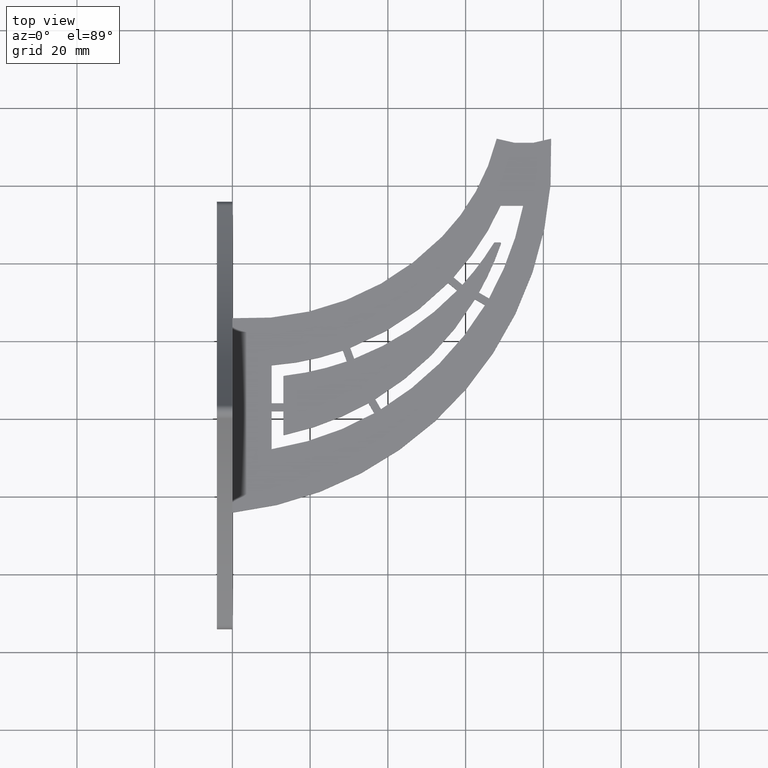
[diagram: clean part render]
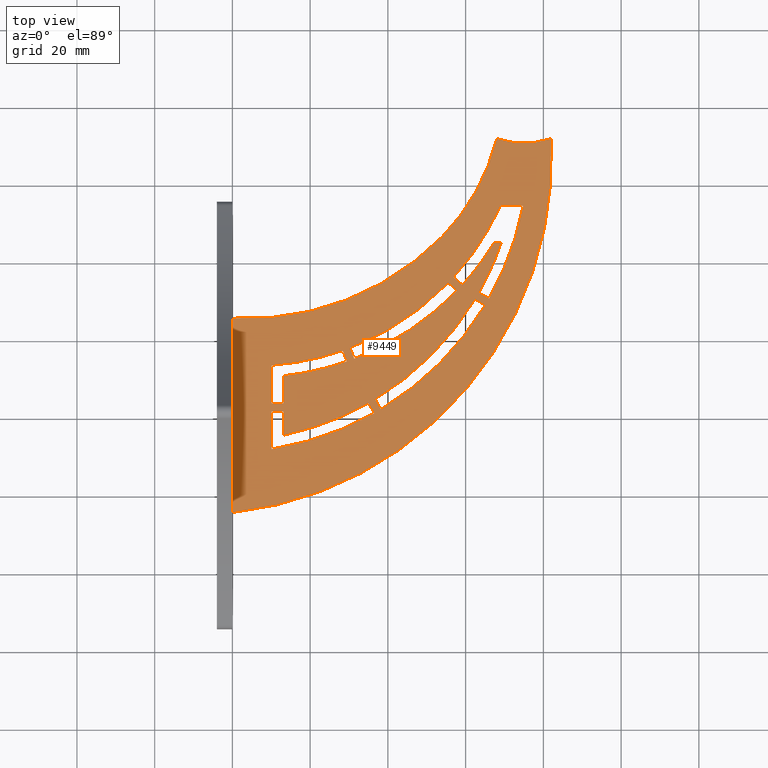
[diagram: same view with one face highlighted and labeled with its STEP entity id]
A machine part, top view. The second image highlights one B-rep face of the part: STEP entity #9449.
In plain terms, the highlighted planar face has unit normal (-0, 0, 1).
Its self-contained STEP definition (entity closure, byte-faithful):
#4 = LINE ( 'NONE', #7925, #8430 ) ;
#17 = CARTESIAN_POINT ( 'NONE',  ( 68.00000000000000000, 71.18900302333739205, 2.000000000000000000 ) ) ;
#40 = VERTEX_POINT ( 'NONE', #9659 ) ;
#41 = FACE_OUTER_BOUND ( 'NONE', #11271, .T. ) ;
#45 = CARTESIAN_POINT ( 'NONE',  ( 65.00000000000001421, 28.36591682216534593, 2.000000000000000000 ) ) ;
#111 = VERTEX_POINT ( 'NONE', #10637 ) ;
#247 = ORIENTED_EDGE ( 'NONE', *, *, #1890, .T. ) ;
#321 = LINE ( 'NONE', #13197, #6594 ) ;
#328 = CIRCLE ( 'NONE', #10571, 78.49999999999998579 ) ;
#348 = EDGE_CURVE ( 'NONE', #1524, #12190, #9825, .T. ) ;
#351 = VERTEX_POINT ( 'NONE', #2299 ) ;
#353 = EDGE_CURVE ( 'NONE', #2132, #4760, #9336, .T. ) ;
#371 = VERTEX_POINT ( 'NONE', #3362 ) ;
#497 = VERTEX_POINT ( 'NONE', #1846 ) ;
#500 = LINE ( 'NONE', #6691, #7941 ) ;
#572 = CARTESIAN_POINT ( 'NONE',  ( 13.40190804038342876, -5.036072685718692377, 2.000000000000000000 ) ) ;
#589 = ORIENTED_EDGE ( 'NONE', *, *, #9886, .F. ) ;
#656 = EDGE_CURVE ( 'NONE', #111, #6487, #2065, .T. ) ;
#666 = VERTEX_POINT ( 'NONE', #12627 ) ;
#673 = CARTESIAN_POINT ( 'NONE',  ( 13.09999999999989306, -4.356155149773243477E-13, 2.000000000000000000 ) ) ;
#699 = ORIENTED_EDGE ( 'NONE', *, *, #7045, .T. ) ;
#707 = CARTESIAN_POINT ( 'NONE',  ( 10.09999999999999964, 0.000000000000000000, 2.000000000000000000 ) ) ;
#720 = CARTESIAN_POINT ( 'NONE',  ( 13.10000000000022169, -4.791520942025062624, 2.000000000000000000 ) ) ;
#800 = VERTEX_POINT ( 'NONE', #45 ) ;
#817 = CARTESIAN_POINT ( 'NONE',  ( 2.302567471051777078E-13, 44.50000000000035527, 2.000000000000000000 ) ) ;
#889 = AXIS2_PLACEMENT_3D ( 'NONE', #4376, #7702, #2436 ) ;
#955 = VERTEX_POINT ( 'NONE', #9761 ) ;
#1044 = ORIENTED_EDGE ( 'NONE', *, *, #12098, .F. ) ;
#1077 = ORIENTED_EDGE ( 'NONE', *, *, #10941, .F. ) ;
#1124 = DIRECTION ( 'NONE',  ( 1.000000000000000000, 0.000000000000000000, 0.000000000000000000 ) ) ;
#1125 = DIRECTION ( 'NONE',  ( 1.000000000000000000, 0.000000000000000000, 0.000000000000000000 ) ) ;
#1147 = VECTOR ( 'NONE', #8075, 1000.000000000000114 ) ;
#1169 = CARTESIAN_POINT ( 'NONE',  ( 0.000000000000000000, 1.100000000000000311, 2.000000000000000000 ) ) ;
#1189 = CARTESIAN_POINT ( 'NONE',  ( 0.000000000000000000, 0.000000000000000000, 2.000000000000000000 ) ) ;
#1201 = CARTESIAN_POINT ( 'NONE',  ( 13.32211758407314939, 10.18235425494592938, 2.000000000000000000 ) ) ;
#1257 = EDGE_CURVE ( 'NONE', #3153, #11437, #2705, .T. ) ;
#1297 = CIRCLE ( 'NONE', #12227, 0.2500000000000296985 ) ;
#1348 = CARTESIAN_POINT ( 'NONE',  ( 62.40149663089107435, 29.86616344181055283, 2.000000000000000000 ) ) ;
#1383 = DIRECTION ( 'NONE',  ( 1.000000000000000000, 0.000000000000000000, 0.000000000000000000 ) ) ;
#1387 = DIRECTION ( 'NONE',  ( 0.3453912201917184177, -0.9384587923902019124, 0.000000000000000000 ) ) ;
#1395 = CARTESIAN_POINT ( 'NONE',  ( 69.01433309437241803, 54.00000000000000711, 2.000000000000000000 ) ) ;
#1399 = CARTESIAN_POINT ( 'NONE',  ( 14.61404249810564338, 84.41547426875771976, 2.000000000000000000 ) ) ;
#1402 = LINE ( 'NONE', #11941, #8343 ) ;
#1502 = EDGE_LOOP ( 'NONE', ( #11727, #12349, #11404, #3925, #6650, #6939, #589 ) ) ;
#1520 = CIRCLE ( 'NONE', #10819, 78.50000000000000000 ) ;
#1524 = VERTEX_POINT ( 'NONE', #11119 ) ;
#1593 = DIRECTION ( 'NONE',  ( 1.000000000000000000, 0.000000000000000000, 0.000000000000000000 ) ) ;
#1611 = VERTEX_POINT ( 'NONE', #5435 ) ;
#1630 = AXIS2_PLACEMENT_3D ( 'NONE', #6412, #7470, #7509 ) ;
#1648 = LINE ( 'NONE', #13404, #8433 ) ;
#1659 = EDGE_CURVE ( 'NONE', #11688, #9168, #7825, .T. ) ;
#1730 = EDGE_CURVE ( 'NONE', #11929, #2005, #8172, .T. ) ;
#1740 = DIRECTION ( 'NONE',  ( 0.3453912201918108438, -0.9384587923901678286, 0.000000000000000000 ) ) ;
#1846 = CARTESIAN_POINT ( 'NONE',  ( 13.10000000000022169, 9.933913978657852084, 2.000000000000000000 ) ) ;
#1890 = EDGE_CURVE ( 'NONE', #40, #3771, #10462, .T. ) ;
#1957 = VERTEX_POINT ( 'NONE', #11498 ) ;
#2005 = VERTEX_POINT ( 'NONE', #4889 ) ;
#2020 = FACE_BOUND ( 'NONE', #1502, .T. ) ;
#2065 = CIRCLE ( 'NONE', #5401, 0.2500000000000279776 ) ;
#2101 = EDGE_CURVE ( 'NONE', #9575, #6487, #4680, .T. ) ;
#2132 = VERTEX_POINT ( 'NONE', #9815 ) ;
#2168 = VERTEX_POINT ( 'NONE', #2329 ) ;
#2207 = EDGE_LOOP ( 'NONE', ( #12659, #9458, #12052, #4591, #9118, #10477, #8264, #8201, #1044, #9768 ) ) ;
#2243 = CARTESIAN_POINT ( 'NONE',  ( 29.45318661070406918, 13.88045996790233794, 2.000000000000000000 ) ) ;
#2299 = CARTESIAN_POINT ( 'NONE',  ( 63.41057880476433439, 31.59297065384887659, 2.000000000000000000 ) ) ;
#2329 = CARTESIAN_POINT ( 'NONE',  ( 31.33010419547926872, 14.57124240828424711, 2.000000000000000000 ) ) ;
#2359 = ORIENTED_EDGE ( 'NONE', *, *, #6260, .T. ) ;
#2403 = DIRECTION ( 'NONE',  ( 0.8660254037844365982, -0.5000000000000036637, 0.000000000000000000 ) ) ;
#2426 = VECTOR ( 'NONE', #11332, 1000.000000000000000 ) ;
#2436 = DIRECTION ( 'NONE',  ( 1.000000000000000000, 0.000000000000000000, 0.000000000000000000 ) ) ;
#2468 = ORIENTED_EDGE ( 'NONE', *, *, #12152, .T. ) ;
#2489 = LINE ( 'NONE', #707, #13049 ) ;
#2496 = VECTOR ( 'NONE', #4426, 1000.000000000000000 ) ;
#2505 = EDGE_CURVE ( 'NONE', #4797, #11929, #6844, .T. ) ;
#2579 = DIRECTION ( 'NONE',  ( -0.000000000000000000, 0.000000000000000000, 1.000000000000000000 ) ) ;
#2664 = DIRECTION ( 'NONE',  ( 1.000000000000000000, 0.000000000000000000, 0.000000000000000000 ) ) ;
#2671 = FACE_BOUND ( 'NONE', #5514, .T. ) ;
#2705 = LINE ( 'NONE', #9420, #10476 ) ;
#2781 = AXIS2_PLACEMENT_3D ( 'NONE', #5865, #4084, #8262 ) ;
#2832 = DIRECTION ( 'NONE',  ( 3.325309274636090619E-14, 1.000000000000000000, 0.000000000000000000 ) ) ;
#2839 = AXIS2_PLACEMENT_3D ( 'NONE', #12296, #9157, #1593 ) ;
#3153 = VERTEX_POINT ( 'NONE', #4987 ) ;
#3183 = CARTESIAN_POINT ( 'NONE',  ( 66.00873501796485243, 30.09292446476082361, 2.000000000000000000 ) ) ;
#3282 = DIRECTION ( 'NONE',  ( 1.000000000000000000, 0.000000000000000000, 0.000000000000000000 ) ) ;
#3302 = VERTEX_POINT ( 'NONE', #2243 ) ;
#3332 = DIRECTION ( 'NONE',  ( 1.000000000000000000, 0.000000000000000000, 0.000000000000000000 ) ) ;
#3362 = CARTESIAN_POINT ( 'NONE',  ( -1.998139615876600116E-12, -24.99999999999961986, 2.000000000000000000 ) ) ;
#3375 = EDGE_CURVE ( 'NONE', #1524, #9575, #1402, .T. ) ;
#3423 = EDGE_LOOP ( 'NONE', ( #10111, #2359, #4023, #9372, #11819, #4804, #9794 ) ) ;
#3431 = CARTESIAN_POINT ( 'NONE',  ( 81.99999999999997158, 71.18900302333739205, 2.000000000000000000 ) ) ;
#3664 = ORIENTED_EDGE ( 'NONE', *, *, #6178, .T. ) ;
#3666 = EDGE_CURVE ( 'NONE', #666, #11688, #8760, .T. ) ;
#3696 = DIRECTION ( 'NONE',  ( -0.000000000000000000, 0.000000000000000000, 1.000000000000000000 ) ) ;
#3757 = DIRECTION ( 'NONE',  ( 1.000000000000000000, 0.000000000000000000, 0.000000000000000000 ) ) ;
#3771 = VERTEX_POINT ( 'NONE', #1348 ) ;
#3787 = LINE ( 'NONE', #11089, #1147 ) ;
#3819 = DIRECTION ( 'NONE',  ( -0.000000000000000000, 0.000000000000000000, 1.000000000000000000 ) ) ;
#3874 = DIRECTION ( 'NONE',  ( -0.000000000000000000, 0.000000000000000000, 1.000000000000000000 ) ) ;
#3925 = ORIENTED_EDGE ( 'NONE', *, *, #2505, .T. ) ;
#3968 = VECTOR ( 'NONE', #10054, 1000.000000000000114 ) ;
#3996 = CARTESIAN_POINT ( 'NONE',  ( 5.180452133363093736, 82.72691493104838401, 2.000000000000000000 ) ) ;
#4023 = ORIENTED_EDGE ( 'NONE', *, *, #4768, .F. ) ;
#4084 = DIRECTION ( 'NONE',  ( -0.000000000000000000, 0.000000000000000000, 1.000000000000000000 ) ) ;
#4093 = PLANE ( 'NONE',  #7382 ) ;
#4122 = CARTESIAN_POINT ( 'NONE',  ( 3.879352446742994065, 94.89242179660072907, 2.000000000000000000 ) ) ;
#4165 = CARTESIAN_POINT ( 'NONE',  ( 36.49999999999999289, 0.5631358385336567851, 2.000000000000000000 ) ) ;
#4272 = DIRECTION ( 'NONE',  ( 1.000000000000000000, 0.000000000000000000, 0.000000000000000000 ) ) ;
#4284 = EDGE_CURVE ( 'NONE', #11990, #2168, #500, .T. ) ;
#4376 = CARTESIAN_POINT ( 'NONE',  ( 68.85196653942389844, 44.24999999999997868, 2.000000000000000000 ) ) ;
#4400 = EDGE_LOOP ( 'NONE', ( #4824, #10396, #3664, #13440 ) ) ;
#4426 = DIRECTION ( 'NONE',  ( 3.552713678800588651E-14, 1.000000000000000000, 0.000000000000000000 ) ) ;
#4468 = EDGE_CURVE ( 'NONE', #351, #5079, #1648, .T. ) ;
#4475 = CIRCLE ( 'NONE', #9240, 69.99999999999998579 ) ;
#4489 = DIRECTION ( 'NONE',  ( 1.000000000000000000, 0.000000000000000000, 0.000000000000000000 ) ) ;
#4591 = ORIENTED_EDGE ( 'NONE', *, *, #656, .T. ) ;
#4680 = CIRCLE ( 'NONE', #6035, 73.00000000000001421 ) ;
#4752 = EDGE_CURVE ( 'NONE', #2168, #7187, #6758, .T. ) ;
#4760 = VERTEX_POINT ( 'NONE', #9120 ) ;
#4768 = EDGE_CURVE ( 'NONE', #11437, #497, #12042, .T. ) ;
#4771 = LINE ( 'NONE', #9898, #5772 ) ;
#4774 = EDGE_CURVE ( 'NONE', #5389, #3302, #321, .T. ) ;
#4797 = VERTEX_POINT ( 'NONE', #720 ) ;
#4804 = ORIENTED_EDGE ( 'NONE', *, *, #9972, .T. ) ;
#4824 = ORIENTED_EDGE ( 'NONE', *, *, #4752, .F. ) ;
#4889 = CARTESIAN_POINT ( 'NONE',  ( 34.99996197542167664, 3.161277910388546442, 2.000000000000000000 ) ) ;
#4899 = DIRECTION ( 'NONE',  ( 1.000000000000000000, 0.000000000000000000, 0.000000000000000000 ) ) ;
#4987 = CARTESIAN_POINT ( 'NONE',  ( 10.09999999999999964, 3.100000000000001865, 2.000000000000000000 ) ) ;
#5022 = DIRECTION ( 'NONE',  ( -3.739439842733181748E-14, 1.000000000000000000, 0.000000000000000000 ) ) ;
#5079 = VERTEX_POINT ( 'NONE', #3183 ) ;
#5136 = LINE ( 'NONE', #1169, #10416 ) ;
#5273 = DIRECTION ( 'NONE',  ( 1.000000000000000000, 1.445602896647341382E-16, 0.000000000000000000 ) ) ;
#5291 = CARTESIAN_POINT ( 'NONE',  ( 55.50000000000000000, 34.06539931041406533, 2.000000000000000000 ) ) ;
#5327 = FACE_BOUND ( 'NONE', #4400, .T. ) ;
#5348 = EDGE_CURVE ( 'NONE', #4797, #1957, #10063, .T. ) ;
#5389 = VERTEX_POINT ( 'NONE', #6044 ) ;
#5401 = AXIS2_PLACEMENT_3D ( 'NONE', #7503, #11620, #9579 ) ;
#5435 = CARTESIAN_POINT ( 'NONE',  ( 74.81433309437242940, 54.00000000000000711, 2.000000000000000000 ) ) ;
#5454 = VECTOR ( 'NONE', #2403, 1000.000000000000000 ) ;
#5514 = EDGE_LOOP ( 'NONE', ( #699, #247, #2468, #1077 ) ) ;
#5517 = CARTESIAN_POINT ( 'NONE',  ( -2.274320155918185815, 68.81855391245915143, 2.000000000000000000 ) ) ;
#5559 = CARTESIAN_POINT ( 'NONE',  ( -2.274320155918185815, 68.81855391245915143, 2.000000000000000000 ) ) ;
#5730 = DIRECTION ( 'NONE',  ( 1.000000000000000000, 0.000000000000000000, 0.000000000000000000 ) ) ;
#5744 = ORIENTED_EDGE ( 'NONE', *, *, #9657, .T. ) ;
#5772 = VECTOR ( 'NONE', #9807, 1000.000000000000000 ) ;
#5787 = DIRECTION ( 'NONE',  ( 1.000000000000000000, 0.000000000000000000, 0.000000000000000000 ) ) ;
#5807 = ORIENTED_EDGE ( 'NONE', *, *, #3666, .F. ) ;
#5809 = CARTESIAN_POINT ( 'NONE',  ( 13.35000000000025189, -4.791520942025062624, 2.000000000000000000 ) ) ;
#5865 = CARTESIAN_POINT ( 'NONE',  ( 5.180452133363093736, 82.72691493104838401, 2.000000000000000000 ) ) ;
#6021 = ORIENTED_EDGE ( 'NONE', *, *, #9252, .F. ) ;
#6035 = AXIS2_PLACEMENT_3D ( 'NONE', #3996, #6087, #4272 ) ;
#6039 = DIRECTION ( 'NONE',  ( 1.000000000000000000, 0.000000000000000000, 0.000000000000000000 ) ) ;
#6044 = CARTESIAN_POINT ( 'NONE',  ( 28.41691154838158795, 16.69611186267583491, 2.000000000000000000 ) ) ;
#6087 = DIRECTION ( 'NONE',  ( -0.000000000000000000, 0.000000000000000000, 1.000000000000000000 ) ) ;
#6115 = CIRCLE ( 'NONE', #2781, 72.99999999999998579 ) ;
#6154 = CARTESIAN_POINT ( 'NONE',  ( -2.274320155918185815, 68.81855391245915143, 2.000000000000000000 ) ) ;
#6178 = EDGE_CURVE ( 'NONE', #11990, #9881, #13649, .T. ) ;
#6260 = EDGE_CURVE ( 'NONE', #13224, #497, #1297, .T. ) ;
#6268 = VECTOR ( 'NONE', #2832, 1000.000000000000000 ) ;
#6333 = AXIS2_PLACEMENT_3D ( 'NONE', #5559, #8690, #9893 ) ;
#6349 = DIRECTION ( 'NONE',  ( -0.000000000000000000, 0.000000000000000000, 1.000000000000000000 ) ) ;
#6370 = CARTESIAN_POINT ( 'NONE',  ( 59.17939240146306901, 33.60345363278309350, 2.000000000000000000 ) ) ;
#6412 = CARTESIAN_POINT ( 'NONE',  ( -2.274320155918185815, 68.81855391245915143, 2.000000000000000000 ) ) ;
#6487 = VERTEX_POINT ( 'NONE', #10689 ) ;
#6594 = VECTOR ( 'NONE', #1740, 1000.000000000000114 ) ;
#6650 = ORIENTED_EDGE ( 'NONE', *, *, #1730, .T. ) ;
#6671 = DIRECTION ( 'NONE',  ( 0.7683469671252344257, -0.6400335445189211381, 0.000000000000000000 ) ) ;
#6691 = CARTESIAN_POINT ( 'NONE',  ( 32.31563232537948238, 11.89347446114490836, 2.000000000000000000 ) ) ;
#6706 = EDGE_CURVE ( 'NONE', #111, #4760, #7388, .T. ) ;
#6758 = CIRCLE ( 'NONE', #2839, 73.00000000000001421 ) ;
#6814 = CARTESIAN_POINT ( 'NONE',  ( 57.81112312110035845, 32.14023218370323320, 2.000000000000000000 ) ) ;
#6844 = CIRCLE ( 'NONE', #9383, 0.2500000000000366374 ) ;
#6939 = ORIENTED_EDGE ( 'NONE', *, *, #13048, .F. ) ;
#6970 = CARTESIAN_POINT ( 'NONE',  ( 10.09999999999999787, 12.90000000000000391, 2.000000000000000000 ) ) ;
#7045 = EDGE_CURVE ( 'NONE', #955, #40, #10203, .T. ) ;
#7076 = AXIS2_PLACEMENT_3D ( 'NONE', #1399, #13003, #3332 ) ;
#7112 = CARTESIAN_POINT ( 'NONE',  ( 10.09999999999999964, -8.700000000000001066, 2.000000000000000000 ) ) ;
#7187 = VERTEX_POINT ( 'NONE', #6814 ) ;
#7382 = AXIS2_PLACEMENT_3D ( 'NONE', #1189, #11713, #10518 ) ;
#7388 = LINE ( 'NONE', #817, #2426 ) ;
#7470 = DIRECTION ( 'NONE',  ( -0.000000000000000000, 0.000000000000000000, 1.000000000000000000 ) ) ;
#7503 = CARTESIAN_POINT ( 'NONE',  ( 67.51093839320922996, 44.24999999999997868, 2.000000000000000000 ) ) ;
#7509 = DIRECTION ( 'NONE',  ( 1.000000000000000000, 0.000000000000000000, 0.000000000000000000 ) ) ;
#7702 = DIRECTION ( 'NONE',  ( -0.000000000000000000, 0.000000000000000000, 1.000000000000000000 ) ) ;
#7786 = AXIS2_PLACEMENT_3D ( 'NONE', #7912, #10982, #9006 ) ;
#7825 = CIRCLE ( 'NONE', #7076, 55.00000000000000711 ) ;
#7853 = CARTESIAN_POINT ( 'NONE',  ( 5.180452133363093736, 82.72691493104838401, 2.000000000000000000 ) ) ;
#7912 = CARTESIAN_POINT ( 'NONE',  ( -2.274320155918185815, 68.81855391245915143, 2.000000000000000000 ) ) ;
#7925 = CARTESIAN_POINT ( 'NONE',  ( 0.000000000000000000, 54.00000000000000711, 2.000000000000000000 ) ) ;
#7941 = VECTOR ( 'NONE', #1387, 999.9999999999998863 ) ;
#8075 = DIRECTION ( 'NONE',  ( -0.5000000000000005551, 0.8660254037844382635, 0.000000000000000000 ) ) ;
#8145 = FACE_BOUND ( 'NONE', #3423, .T. ) ;
#8172 = CIRCLE ( 'NONE', #7786, 75.50000000277351830 ) ;
#8201 = ORIENTED_EDGE ( 'NONE', *, *, #13059, .T. ) ;
#8218 = CARTESIAN_POINT ( 'NONE',  ( 53.97457268643530881, 45.99999999999996447, 2.000000000000000000 ) ) ;
#8262 = DIRECTION ( 'NONE',  ( 1.000000000000000000, 0.000000000000000000, 0.000000000000000000 ) ) ;
#8264 = ORIENTED_EDGE ( 'NONE', *, *, #348, .T. ) ;
#8343 = VECTOR ( 'NONE', #6671, 1000.000000000000114 ) ;
#8430 = VECTOR ( 'NONE', #3757, 1000.000000000000000 ) ;
#8433 = VECTOR ( 'NONE', #11344, 1000.000000000000114 ) ;
#8635 = DIRECTION ( 'NONE',  ( -0.000000000000000000, 0.000000000000000000, 1.000000000000000000 ) ) ;
#8687 = CARTESIAN_POINT ( 'NONE',  ( 28.53280228481606784, 49.42026323961830059, 2.000000000000000000 ) ) ;
#8690 = DIRECTION ( 'NONE',  ( -0.000000000000000000, 0.000000000000000000, 1.000000000000000000 ) ) ;
#8760 = CIRCLE ( 'NONE', #12643, 69.99999999999997158 ) ;
#8818 = EDGE_CURVE ( 'NONE', #12435, #13223, #2489, .T. ) ;
#8854 = ORIENTED_EDGE ( 'NONE', *, *, #11438, .F. ) ;
#8945 = CARTESIAN_POINT ( 'NONE',  ( 10.09999999999999964, 1.100000000000000311, 2.000000000000000000 ) ) ;
#8991 = DIRECTION ( 'NONE',  ( 1.000000000000000000, 0.000000000000000000, 0.000000000000000000 ) ) ;
#9006 = DIRECTION ( 'NONE',  ( 1.000000000000000000, 0.000000000000000000, 0.000000000000000000 ) ) ;
#9079 = CARTESIAN_POINT ( 'NONE',  ( 13.10000000000004228, 4.898666193980483286E-13, 2.000000000000000000 ) ) ;
#9118 = ORIENTED_EDGE ( 'NONE', *, *, #2101, .F. ) ;
#9120 = CARTESIAN_POINT ( 'NONE',  ( 68.85196653942389844, 44.50000000000000000, 2.000000000000000000 ) ) ;
#9157 = DIRECTION ( 'NONE',  ( -0.000000000000000000, 0.000000000000000000, 1.000000000000000000 ) ) ;
#9168 = VERTEX_POINT ( 'NONE', #17 ) ;
#9235 = LINE ( 'NONE', #8687, #5454 ) ;
#9240 = AXIS2_PLACEMENT_3D ( 'NONE', #12103, #2579, #5787 ) ;
#9252 = EDGE_CURVE ( 'NONE', #371, #666, #13551, .T. ) ;
#9336 = CIRCLE ( 'NONE', #889, 0.2500000000000140998 ) ;
#9372 = ORIENTED_EDGE ( 'NONE', *, *, #1257, .F. ) ;
#9383 = AXIS2_PLACEMENT_3D ( 'NONE', #5809, #12126, #8991 ) ;
#9420 = CARTESIAN_POINT ( 'NONE',  ( -4.481368979606760207E-16, 3.100000000000000977, 2.000000000000000000 ) ) ;
#9448 = CIRCLE ( 'NONE', #10387, 91.99999999999938893 ) ;
#9449 = ADVANCED_FACE ( 'NONE', ( #2020, #41, #8145, #2671, #5327, #11267 ), #4093, .T. ) ;
#9458 = ORIENTED_EDGE ( 'NONE', *, *, #353, .T. ) ;
#9504 = EDGE_CURVE ( 'NONE', #351, #2132, #9776, .T. ) ;
#9575 = VERTEX_POINT ( 'NONE', #6370 ) ;
#9579 = DIRECTION ( 'NONE',  ( 1.000000000000000000, 0.000000000000000000, 0.000000000000000000 ) ) ;
#9657 = EDGE_CURVE ( 'NONE', #371, #10942, #9448, .T. ) ;
#9659 = CARTESIAN_POINT ( 'NONE',  ( 36.72602755165311095, 4.171644635160063785, 2.000000000000000000 ) ) ;
#9682 = CARTESIAN_POINT ( 'NONE',  ( 5.180452133363093736, 82.72691493104838401, 2.000000000000000000 ) ) ;
#9685 = CARTESIAN_POINT ( 'NONE',  ( 1.110223024625135740E-12, -3.944304526105082560E-26, 2.000000000000000000 ) ) ;
#9761 = CARTESIAN_POINT ( 'NONE',  ( 38.22629435678329912, 1.573106303765562597, 2.000000000000000000 ) ) ;
#9768 = ORIENTED_EDGE ( 'NONE', *, *, #4468, .F. ) ;
#9776 = CIRCLE ( 'NONE', #1630, 75.50000000277351830 ) ;
#9794 = ORIENTED_EDGE ( 'NONE', *, *, #4774, .T. ) ;
#9807 = DIRECTION ( 'NONE',  ( -1.770125995894700956E-16, 1.000000000000000000, 0.000000000000000000 ) ) ;
#9815 = CARTESIAN_POINT ( 'NONE',  ( 69.08826649521368779, 44.16837689730377292, 2.000000000000000000 ) ) ;
#9820 = ORIENTED_EDGE ( 'NONE', *, *, #1659, .F. ) ;
#9825 = CIRCLE ( 'NONE', #9908, 70.00000000000000000 ) ;
#9881 = VERTEX_POINT ( 'NONE', #5291 ) ;
#9886 = EDGE_CURVE ( 'NONE', #12435, #11989, #1520, .T. ) ;
#9893 = DIRECTION ( 'NONE',  ( 1.000000000000000000, 0.000000000000000000, 0.000000000000000000 ) ) ;
#9898 = CARTESIAN_POINT ( 'NONE',  ( 10.09999999999999964, 1.787827255853647886E-15, 2.000000000000000000 ) ) ;
#9908 = AXIS2_PLACEMENT_3D ( 'NONE', #9682, #8635, #1383 ) ;
#9972 = EDGE_CURVE ( 'NONE', #10038, #5389, #4475, .T. ) ;
#10036 = DIRECTION ( 'NONE',  ( 0.000000000000000000, 1.000000000000000000, -0.000000000000000000 ) ) ;
#10038 = VERTEX_POINT ( 'NONE', #6970 ) ;
#10054 = DIRECTION ( 'NONE',  ( 0.7683469671252389777, -0.6400335445189156980, 0.000000000000000000 ) ) ;
#10063 = LINE ( 'NONE', #9079, #13494 ) ;
#10111 = ORIENTED_EDGE ( 'NONE', *, *, #11458, .F. ) ;
#10203 = LINE ( 'NONE', #10776, #12500 ) ;
#10282 = DIRECTION ( 'NONE',  ( -0.000000000000000000, 0.000000000000000000, 1.000000000000000000 ) ) ;
#10387 = AXIS2_PLACEMENT_3D ( 'NONE', #11289, #10282, #6039 ) ;
#10396 = ORIENTED_EDGE ( 'NONE', *, *, #4284, .F. ) ;
#10416 = VECTOR ( 'NONE', #3282, 1000.000000000000000 ) ;
#10438 = DIRECTION ( 'NONE',  ( -0.000000000000000000, 0.000000000000000000, 1.000000000000000000 ) ) ;
#10462 = CIRCLE ( 'NONE', #13419, 75.50000000277350409 ) ;
#10476 = VECTOR ( 'NONE', #5273, 1000.000000000000000 ) ;
#10477 = ORIENTED_EDGE ( 'NONE', *, *, #3375, .F. ) ;
#10518 = DIRECTION ( 'NONE',  ( 1.000000000000000000, 0.000000000000000000, 0.000000000000000000 ) ) ;
#10571 = AXIS2_PLACEMENT_3D ( 'NONE', #12651, #10584, #1124 ) ;
#10584 = DIRECTION ( 'NONE',  ( -0.000000000000000000, 0.000000000000000000, 1.000000000000000000 ) ) ;
#10637 = CARTESIAN_POINT ( 'NONE',  ( 67.51093839320922996, 44.50000000000000711, 2.000000000000000000 ) ) ;
#10662 = EDGE_CURVE ( 'NONE', #9881, #7187, #12547, .T. ) ;
#10689 = CARTESIAN_POINT ( 'NONE',  ( 67.29820635819267238, 44.38132052877488576, 2.000000000000000000 ) ) ;
#10776 = CARTESIAN_POINT ( 'NONE',  ( 29.35089577854461496, 16.94574757869946424, 2.000000000000000000 ) ) ;
#10819 = AXIS2_PLACEMENT_3D ( 'NONE', #5517, #12875, #4489 ) ;
#10842 = EDGE_CURVE ( 'NONE', #13223, #1957, #5136, .T. ) ;
#10909 = DIRECTION ( 'NONE',  ( -0.5000000000000017764, 0.8660254037844377084, 0.000000000000000000 ) ) ;
#10941 = EDGE_CURVE ( 'NONE', #955, #800, #11740, .T. ) ;
#10942 = VERTEX_POINT ( 'NONE', #3431 ) ;
#10982 = DIRECTION ( 'NONE',  ( -0.000000000000000000, 0.000000000000000000, 1.000000000000000000 ) ) ;
#11089 = CARTESIAN_POINT ( 'NONE',  ( 27.61884497097577551, 15.94574757869942871, 2.000000000000000000 ) ) ;
#11105 = CARTESIAN_POINT ( 'NONE',  ( 13.09999999999999609, 3.100000000000002309, 2.000000000000000000 ) ) ;
#11119 = CARTESIAN_POINT ( 'NONE',  ( 56.87206340631109924, 35.52546025000670937, 2.000000000000000000 ) ) ;
#11214 = CARTESIAN_POINT ( 'NONE',  ( 13.35000000000025011, 9.933913978657852084, 2.000000000000000000 ) ) ;
#11267 = FACE_BOUND ( 'NONE', #2207, .T. ) ;
#11271 = EDGE_LOOP ( 'NONE', ( #5807, #6021, #5744, #8854, #9820 ) ) ;
#11289 = CARTESIAN_POINT ( 'NONE',  ( -9.878794471127335441, 66.46807869304582539, 2.000000000000000000 ) ) ;
#11332 = DIRECTION ( 'NONE',  ( 1.000000000000000000, -5.174308923711817413E-15, 0.000000000000000000 ) ) ;
#11344 = DIRECTION ( 'NONE',  ( 0.8660254037844340447, -0.5000000000000078826, 0.000000000000000000 ) ) ;
#11404 = ORIENTED_EDGE ( 'NONE', *, *, #5348, .F. ) ;
#11437 = VERTEX_POINT ( 'NONE', #11105 ) ;
#11438 = EDGE_CURVE ( 'NONE', #9168, #10942, #11724, .T. ) ;
#11458 = EDGE_CURVE ( 'NONE', #13224, #3302, #6115, .T. ) ;
#11498 = CARTESIAN_POINT ( 'NONE',  ( 13.10000000000000142, 1.100000000000000311, 2.000000000000000000 ) ) ;
#11620 = DIRECTION ( 'NONE',  ( -0.000000000000000000, 0.000000000000000000, 1.000000000000000000 ) ) ;
#11688 = VERTEX_POINT ( 'NONE', #8218 ) ;
#11713 = DIRECTION ( 'NONE',  ( -0.000000000000000000, 0.000000000000000000, 1.000000000000000000 ) ) ;
#11724 = CIRCLE ( 'NONE', #12685, 21.19999999999999574 ) ;
#11727 = ORIENTED_EDGE ( 'NONE', *, *, #8818, .T. ) ;
#11740 = CIRCLE ( 'NONE', #6333, 78.49999999999998579 ) ;
#11819 = ORIENTED_EDGE ( 'NONE', *, *, #13467, .T. ) ;
#11929 = VERTEX_POINT ( 'NONE', #572 ) ;
#11941 = CARTESIAN_POINT ( 'NONE',  ( 40.76751774610470846, 48.94055770309351772, 2.000000000000000000 ) ) ;
#11989 = VERTEX_POINT ( 'NONE', #4165 ) ;
#11990 = VERTEX_POINT ( 'NONE', #13560 ) ;
#12042 = LINE ( 'NONE', #673, #6268 ) ;
#12052 = ORIENTED_EDGE ( 'NONE', *, *, #6706, .F. ) ;
#12098 = EDGE_CURVE ( 'NONE', #5079, #1611, #328, .T. ) ;
#12103 = CARTESIAN_POINT ( 'NONE',  ( 5.180452133363093736, 82.72691493104838401, 2.000000000000000000 ) ) ;
#12126 = DIRECTION ( 'NONE',  ( -0.000000000000000000, 0.000000000000000000, 1.000000000000000000 ) ) ;
#12152 = EDGE_CURVE ( 'NONE', #3771, #800, #9235, .T. ) ;
#12175 = CARTESIAN_POINT ( 'NONE',  ( 74.99999999999998579, 91.20000000000000284, 2.000000000000000000 ) ) ;
#12190 = VERTEX_POINT ( 'NONE', #1395 ) ;
#12227 = AXIS2_PLACEMENT_3D ( 'NONE', #11214, #3874, #4899 ) ;
#12296 = CARTESIAN_POINT ( 'NONE',  ( 5.180452133363093736, 82.72691493104838401, 2.000000000000000000 ) ) ;
#12349 = ORIENTED_EDGE ( 'NONE', *, *, #10842, .T. ) ;
#12435 = VERTEX_POINT ( 'NONE', #7112 ) ;
#12500 = VECTOR ( 'NONE', #10909, 999.9999999999998863 ) ;
#12544 = DIRECTION ( 'NONE',  ( 1.000000000000000000, 0.000000000000000000, 0.000000000000000000 ) ) ;
#12547 = LINE ( 'NONE', #13107, #3968 ) ;
#12627 = CARTESIAN_POINT ( 'NONE',  ( 1.998587412948803633E-12, 24.99999999999992539, 2.000000000000000000 ) ) ;
#12643 = AXIS2_PLACEMENT_3D ( 'NONE', #4122, #6349, #1125 ) ;
#12651 = CARTESIAN_POINT ( 'NONE',  ( -2.274320155918185815, 68.81855391245915143, 2.000000000000000000 ) ) ;
#12659 = ORIENTED_EDGE ( 'NONE', *, *, #9504, .T. ) ;
#12663 = AXIS2_PLACEMENT_3D ( 'NONE', #7853, #3696, #5730 ) ;
#12685 = AXIS2_PLACEMENT_3D ( 'NONE', #12175, #3819, #2664 ) ;
#12875 = DIRECTION ( 'NONE',  ( -0.000000000000000000, 0.000000000000000000, 1.000000000000000000 ) ) ;
#13003 = DIRECTION ( 'NONE',  ( -0.000000000000000000, 0.000000000000000000, 1.000000000000000000 ) ) ;
#13048 = EDGE_CURVE ( 'NONE', #11989, #2005, #3787, .T. ) ;
#13049 = VECTOR ( 'NONE', #10036, 1000.000000000000000 ) ;
#13059 = EDGE_CURVE ( 'NONE', #12190, #1611, #4, .T. ) ;
#13107 = CARTESIAN_POINT ( 'NONE',  ( 39.48745065706642521, 47.40386376884318764, 2.000000000000000000 ) ) ;
#13197 = CARTESIAN_POINT ( 'NONE',  ( 30.43871474060331650, 11.20269202076643822, 2.000000000000000000 ) ) ;
#13223 = VERTEX_POINT ( 'NONE', #8945 ) ;
#13224 = VERTEX_POINT ( 'NONE', #1201 ) ;
#13404 = CARTESIAN_POINT ( 'NONE',  ( 29.53280228481641956, 51.15231404718719688, 2.000000000000000000 ) ) ;
#13419 = AXIS2_PLACEMENT_3D ( 'NONE', #6154, #10438, #12544 ) ;
#13440 = ORIENTED_EDGE ( 'NONE', *, *, #10662, .T. ) ;
#13467 = EDGE_CURVE ( 'NONE', #3153, #10038, #4771, .T. ) ;
#13494 = VECTOR ( 'NONE', #5022, 1000.000000000000000 ) ;
#13551 = LINE ( 'NONE', #9685, #2496 ) ;
#13560 = CARTESIAN_POINT ( 'NONE',  ( 30.29382913315705039, 17.38689430305788974, 2.000000000000000000 ) ) ;
#13649 = CIRCLE ( 'NONE', #12663, 70.00000000000002842 ) ;